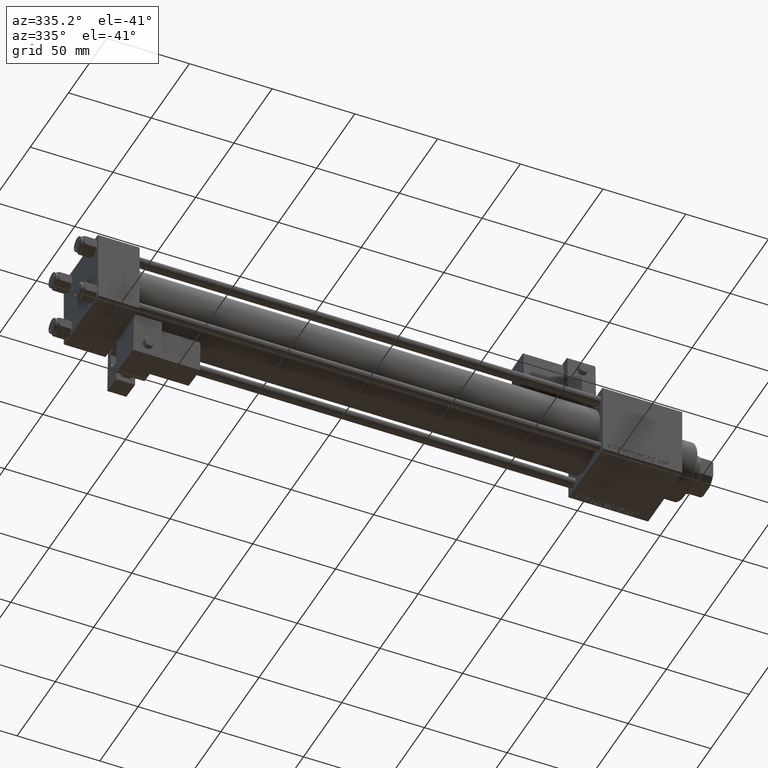
[diagram: clean part render]
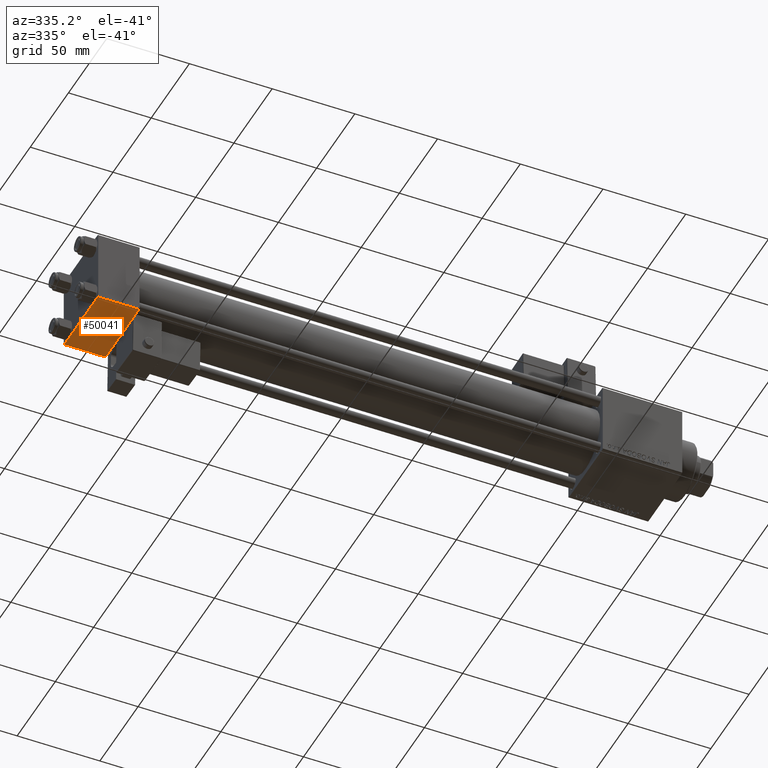
[diagram: same view with one face highlighted and labeled with its STEP entity id]
A machine part, auxiliary view. The second image highlights one B-rep face of the part: STEP entity #50041.
In plain terms, the highlighted planar face has unit normal (0, 0, -1).
Its self-contained STEP definition (entity closure, byte-faithful):
#448 = AXIS2_PLACEMENT_3D ( 'NONE', #6472, #44522, #23063 ) ;
#1117 = CARTESIAN_POINT ( 'NONE',  ( 25.00000000000000000, -21.99999999999997158, -22.50000000000000711 ) ) ;
#1639 = CARTESIAN_POINT ( 'NONE',  ( 25.00000000000000000, 21.99999999999999289, -22.49999999999999645 ) ) ;
#4253 = CARTESIAN_POINT ( 'NONE',  ( 0.000000000000000000, -21.99999999999998579, -22.50000000000000711 ) ) ;
#5909 = VECTOR ( 'NONE', #46644, 1000.000000000000000 ) ;
#6422 = EDGE_LOOP ( 'NONE', ( #11019, #43581, #42859, #40666 ) ) ;
#6472 = CARTESIAN_POINT ( 'NONE',  ( 25.00000000000000000, 22.50000000000000000, -22.49999999999999645 ) ) ;
#8995 = CARTESIAN_POINT ( 'NONE',  ( 25.00000000000000000, 22.50000000000000000, -22.49999999999999645 ) ) ;
#9434 = VERTEX_POINT ( 'NONE', #11365 ) ;
#11019 = ORIENTED_EDGE ( 'NONE', *, *, #50392, .F. ) ;
#11365 = CARTESIAN_POINT ( 'NONE',  ( 0.000000000000000000, -21.99999999999997158, -22.50000000000000711 ) ) ;
#12148 = EDGE_CURVE ( 'NONE', #42647, #27182, #43207, .T. ) ;
#13332 = CARTESIAN_POINT ( 'NONE',  ( 25.00000000000000000, 21.99999999999999289, -22.49999999999999645 ) ) ;
#15174 = PLANE ( 'NONE',  #448 ) ;
#15445 = FACE_OUTER_BOUND ( 'NONE', #6422, .T. ) ;
#17034 = LINE ( 'NONE', #4253, #5909 ) ;
#18380 = CARTESIAN_POINT ( 'NONE',  ( 0.000000000000000000, 22.50000000000000000, -22.49999999999999645 ) ) ;
#22061 = LINE ( 'NONE', #8995, #44936 ) ;
#22450 = VERTEX_POINT ( 'NONE', #1117 ) ;
#23063 = DIRECTION ( 'NONE',  ( 0.000000000000000000, 1.000000000000000000, 2.312964634635742957E-16 ) ) ;
#24967 = EDGE_CURVE ( 'NONE', #27182, #22450, #22061, .T. ) ;
#25599 = DIRECTION ( 'NONE',  ( 0.000000000000000000, -1.000000000000000000, -2.312964634635742957E-16 ) ) ;
#25621 = EDGE_CURVE ( 'NONE', #22450, #9434, #17034, .T. ) ;
#26446 = VECTOR ( 'NONE', #51282, 1000.000000000000000 ) ;
#27182 = VERTEX_POINT ( 'NONE', #1639 ) ;
#33319 = VECTOR ( 'NONE', #47286, 1000.000000000000000 ) ;
#38520 = LINE ( 'NONE', #18380, #26446 ) ;
#40666 = ORIENTED_EDGE ( 'NONE', *, *, #25621, .T. ) ;
#42647 = VERTEX_POINT ( 'NONE', #45075 ) ;
#42859 = ORIENTED_EDGE ( 'NONE', *, *, #24967, .T. ) ;
#43207 = LINE ( 'NONE', #13332, #33319 ) ;
#43581 = ORIENTED_EDGE ( 'NONE', *, *, #12148, .T. ) ;
#44522 = DIRECTION ( 'NONE',  ( 0.000000000000000000, 2.312964634635742957E-16, -1.000000000000000000 ) ) ;
#44936 = VECTOR ( 'NONE', #25599, 1000.000000000000000 ) ;
#45075 = CARTESIAN_POINT ( 'NONE',  ( 0.000000000000000000, 21.99999999999999289, -22.49999999999999645 ) ) ;
#46644 = DIRECTION ( 'NONE',  ( -1.000000000000000000, 0.000000000000000000, 0.000000000000000000 ) ) ;
#47286 = DIRECTION ( 'NONE',  ( 1.000000000000000000, 0.000000000000000000, 0.000000000000000000 ) ) ;
#50041 = ADVANCED_FACE ( 'NONE', ( #15445 ), #15174, .T. ) ;
#50392 = EDGE_CURVE ( 'NONE', #42647, #9434, #38520, .T. ) ;
#51282 = DIRECTION ( 'NONE',  ( 0.000000000000000000, -1.000000000000000000, -2.312964634635742957E-16 ) ) ;